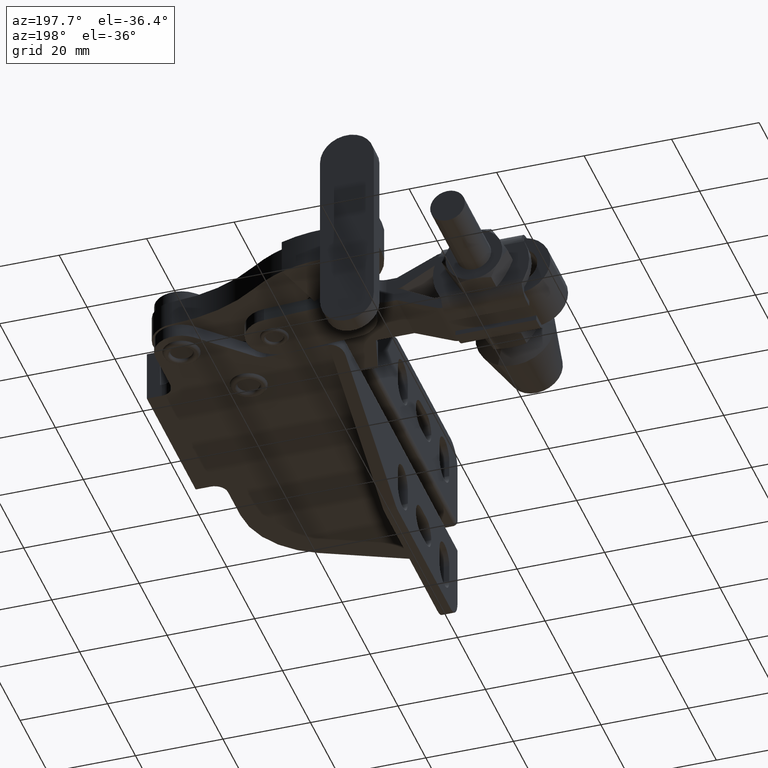
[diagram: clean part render]
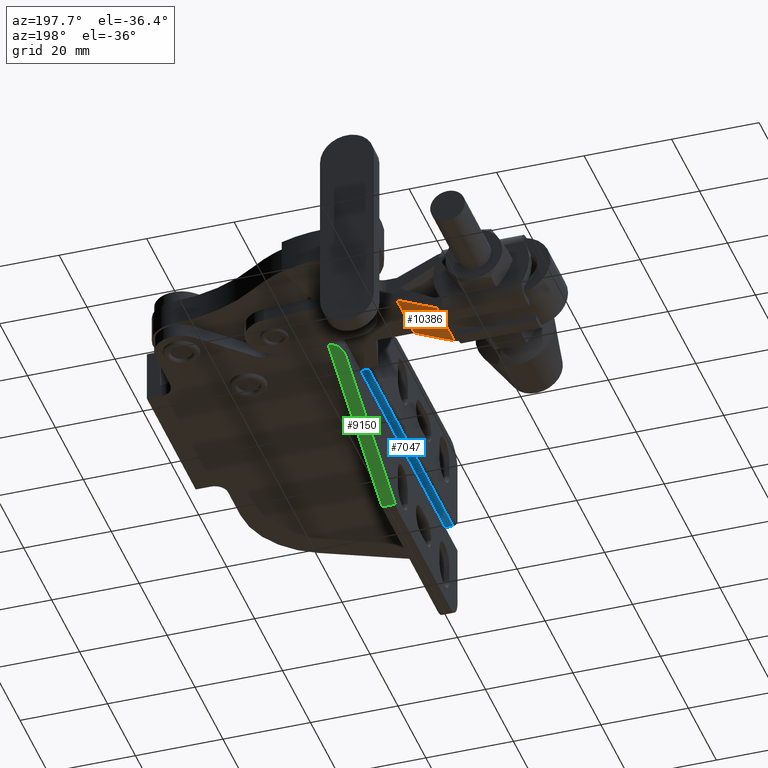
[diagram: same view with three faces highlighted in distinct colors, each labeled with its STEP entity id]
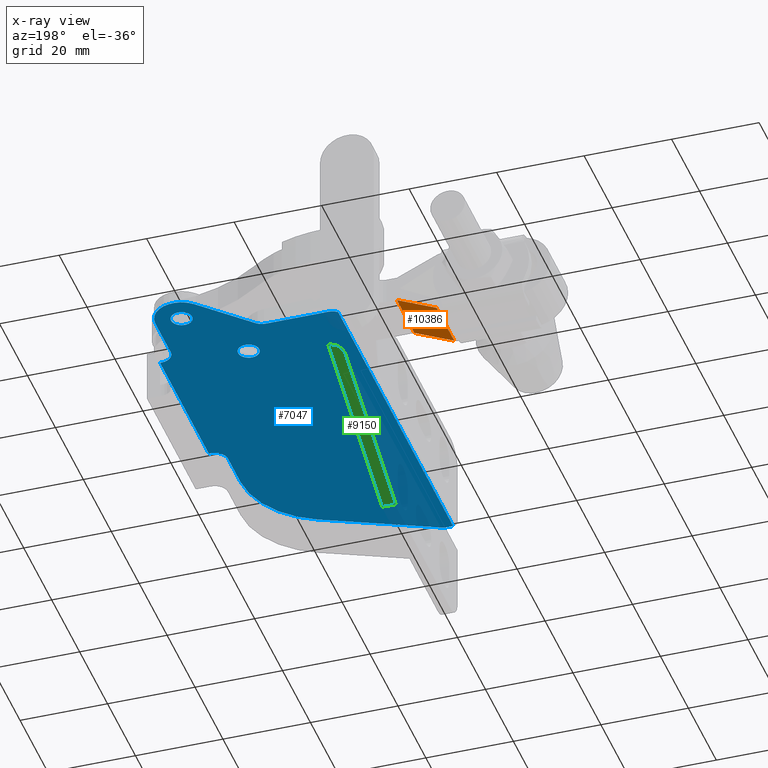
[diagram: x-ray of the same camera — body ghosted, the three highlighted faces saturated]
A machine part, auxiliary view with three faces highlighted in distinct colors.
The next image is the same camera in x-ray (body ghosted, the three faces saturated) — at least one of them is partly hidden behind the body in this view.
Their STEP definitions:

[orange] entity #10386 — the highlighted planar face has unit normal (-0.4132, 0, 0.9106).
#39 = VERTEX_POINT ( 'NONE', #1169 ) ;
#372 = VECTOR ( 'NONE', #1466, 1000.000000000000000 ) ;
#1169 = CARTESIAN_POINT ( 'NONE',  ( -24.09337188628660800, 77.79999999999998300, -10.12588058686079700 ) ) ;
#1220 = EDGE_CURVE ( 'NONE', #3267, #39, #5060, .T. ) ;
#1466 = DIRECTION ( 'NONE',  ( -2.229119666630197100E-016, -1.000000000000000000, 8.306326247221963900E-017 ) ) ;
#1636 = VERTEX_POINT ( 'NONE', #11659 ) ;
#1881 = DIRECTION ( 'NONE',  ( -0.4131828443626722700, 1.677448014424042700E-016, 0.9106480863233458200 ) ) ;
#2253 = VECTOR ( 'NONE', #12306, 1000.000000000000000 ) ;
#2323 = ORIENTED_EDGE ( 'NONE', *, *, #10571, .F. ) ;
#2368 = ORIENTED_EDGE ( 'NONE', *, *, #14013, .T. ) ;
#2586 = VECTOR ( 'NONE', #15194, 1000.000000000000200 ) ;
#3041 = PLANE ( 'NONE',  #14221 ) ;
#3267 = VERTEX_POINT ( 'NONE', #12188 ) ;
#3378 = CARTESIAN_POINT ( 'NONE',  ( -15.00000000000006200, 90.49999999999998600, -5.999999999999991100 ) ) ;
#4454 = FACE_OUTER_BOUND ( 'NONE', #11036, .T. ) ;
#5060 = LINE ( 'NONE', #7571, #14120 ) ;
#5149 = DIRECTION ( 'NONE',  ( -0.9106480863233458200, -3.384156807523496800E-017, -0.4131828443626722200 ) ) ;
#6348 = CARTESIAN_POINT ( 'NONE',  ( -24.09337188628660800, 98.19999999999998900, -10.12588058686079700 ) ) ;
#6908 = LINE ( 'NONE', #6348, #2253 ) ;
#7380 = ORIENTED_EDGE ( 'NONE', *, *, #1220, .T. ) ;
#7571 = CARTESIAN_POINT ( 'NONE',  ( -15.00000000000005500, 77.79999999999998300, -5.999999999999987600 ) ) ;
#8611 = CARTESIAN_POINT ( 'NONE',  ( -15.00000000000005500, 98.19999999999998900, -5.999999999999991100 ) ) ;
#8739 = CARTESIAN_POINT ( 'NONE',  ( -15.00000000000006200, 90.49999999999998600, -5.999999999999991100 ) ) ;
#8912 = LINE ( 'NONE', #3378, #2586 ) ;
#9504 = LINE ( 'NONE', #8611, #372 ) ;
#10176 = DIRECTION ( 'NONE',  ( 0.9106480863233457100, -1.686740408099373900E-016, 0.4131828443626722200 ) ) ;
#10386 = ADVANCED_FACE ( 'NONE', ( #4454 ), #3041, .F. ) ;
#10571 = EDGE_CURVE ( 'NONE', #12011, #1636, #8912, .T. ) ;
#11036 = EDGE_LOOP ( 'NONE', ( #2368, #7380, #12735, #2323 ) ) ;
#11659 = CARTESIAN_POINT ( 'NONE',  ( -24.09337188628660800, 90.49999999999998600, -10.12588058686079500 ) ) ;
#12011 = VERTEX_POINT ( 'NONE', #8739 ) ;
#12188 = CARTESIAN_POINT ( 'NONE',  ( -15.00000000000006200, 77.79999999999998300, -5.999999999999989300 ) ) ;
#12306 = DIRECTION ( 'NONE',  ( -2.229119666630197100E-016, -1.000000000000000000, 8.306326247221963900E-017 ) ) ;
#12735 = ORIENTED_EDGE ( 'NONE', *, *, #14715, .F. ) ;
#13668 = CARTESIAN_POINT ( 'NONE',  ( -15.00000000000005500, 98.19999999999998900, -5.999999999999991100 ) ) ;
#14013 = EDGE_CURVE ( 'NONE', #12011, #3267, #9504, .T. ) ;
#14120 = VECTOR ( 'NONE', #5149, 1000.000000000000200 ) ;
#14221 = AXIS2_PLACEMENT_3D ( 'NONE', #13668, #1881, #10176 ) ;
#14715 = EDGE_CURVE ( 'NONE', #1636, #39, #6908, .T. ) ;
#15194 = DIRECTION ( 'NONE',  ( -0.9106480863233458200, 2.528649378919298900E-016, -0.4131828443626722200 ) ) ;

[blue] entity #7047 — the highlighted planar face has unit normal (0, 0, 1).
#164 = DIRECTION ( 'NONE',  ( -1.000000000000000000, 0.0000000000000000000, 0.0000000000000000000 ) ) ;
#228 = LINE ( 'NONE', #268, #6572 ) ;
#244 = LINE ( 'NONE', #9099, #9370 ) ;
#252 = DIRECTION ( 'NONE',  ( 1.000000000000000000, 0.0000000000000000000, 0.0000000000000000000 ) ) ;
#268 = CARTESIAN_POINT ( 'NONE',  ( 40.20000000000011700, 29.49999999999997200, 3.816391647148975600E-014 ) ) ;
#500 = FACE_BOUND ( 'NONE', #7673, .T. ) ;
#699 = DIRECTION ( 'NONE',  ( 6.672013369141561300E-016, 1.000000000000000000, 0.0000000000000000000 ) ) ;
#917 = ORIENTED_EDGE ( 'NONE', *, *, #8310, .T. ) ;
#1204 = VECTOR ( 'NONE', #9339, 1000.000000000000000 ) ;
#1261 = EDGE_CURVE ( 'NONE', #10305, #10783, #4690, .T. ) ;
#1381 = EDGE_CURVE ( 'NONE', #10783, #3607, #2453, .T. ) ;
#1551 = CARTESIAN_POINT ( 'NONE',  ( 43.59999999999999400, -2.908997828945720800E-014, 3.816391647148975600E-014 ) ) ;
#1802 = AXIS2_PLACEMENT_3D ( 'NONE', #7484, #2782, #11088 ) ;
#1916 = CARTESIAN_POINT ( 'NONE',  ( 43.19999999999995300, 76.50000000000001400, 3.816391647148975600E-014 ) ) ;
#1988 = ORIENTED_EDGE ( 'NONE', *, *, #10984, .T. ) ;
#2192 = EDGE_CURVE ( 'NONE', #11984, #10305, #9290, .T. ) ;
#2195 = ORIENTED_EDGE ( 'NONE', *, *, #12660, .T. ) ;
#2238 = CARTESIAN_POINT ( 'NONE',  ( 29.94181345573087300, 94.72703765706036400, 3.816391647148975600E-014 ) ) ;
#2360 = EDGE_LOOP ( 'NONE', ( #2195, #5476, #5772, #14229, #3275, #13009, #2427, #15086, #7137, #14453, #13236, #1988, #12033, #7008, #7509, #13707 ) ) ;
#2388 = CARTESIAN_POINT ( 'NONE',  ( 40.20000000000011700, 29.49999999999997200, 3.816391647148975600E-014 ) ) ;
#2427 = ORIENTED_EDGE ( 'NONE', *, *, #2192, .T. ) ;
#2453 = LINE ( 'NONE', #1916, #14672 ) ;
#2537 = CARTESIAN_POINT ( 'NONE',  ( 40.20000000000001000, 79.50000000000001400, 3.816391647148975600E-014 ) ) ;
#2615 = LINE ( 'NONE', #12217, #11362 ) ;
#2727 = PLANE ( 'NONE',  #1802 ) ;
#2771 = CARTESIAN_POINT ( 'NONE',  ( 40.20000000000001000, 90.50000000000002800, 3.816391647148975600E-014 ) ) ;
#2782 = DIRECTION ( 'NONE',  ( -0.0000000000000000000, 0.0000000000000000000, 1.000000000000000000 ) ) ;
#2783 = CIRCLE ( 'NONE', #7863, 2.415000000000014200 ) ;
#2812 = AXIS2_PLACEMENT_3D ( 'NONE', #10239, #3146, #11454 ) ;
#3074 = CARTESIAN_POINT ( 'NONE',  ( 43.20000000000002400, 38.49999999999855000, 3.816391647148975600E-014 ) ) ;
#3146 = DIRECTION ( 'NONE',  ( -0.0000000000000000000, -0.0000000000000000000, 1.000000000000000000 ) ) ;
#3275 = ORIENTED_EDGE ( 'NONE', *, *, #7941, .T. ) ;
#3410 = CARTESIAN_POINT ( 'NONE',  ( 3.000000000000045700, 80.20000000000004500, 3.816391647148975600E-014 ) ) ;
#3451 = CARTESIAN_POINT ( 'NONE',  ( 3.000000000000045700, 83.20000000000004500, 3.816391647148975600E-014 ) ) ;
#3532 = VERTEX_POINT ( 'NONE', #9280 ) ;
#3579 = VECTOR ( 'NONE', #699, 1000.000000000000000 ) ;
#3607 = VERTEX_POINT ( 'NONE', #11773 ) ;
#3714 = DIRECTION ( 'NONE',  ( 0.0000000000000000000, -1.000000000000000000, 0.0000000000000000000 ) ) ;
#3727 = AXIS2_PLACEMENT_3D ( 'NONE', #3074, #11374, #4244 ) ;
#3964 = VERTEX_POINT ( 'NONE', #7816 ) ;
#3995 = DIRECTION ( 'NONE',  ( -0.0000000000000000000, 0.0000000000000000000, 1.000000000000000000 ) ) ;
#4003 = LINE ( 'NONE', #2238, #1204 ) ;
#4099 = VERTEX_POINT ( 'NONE', #10449 ) ;
#4244 = DIRECTION ( 'NONE',  ( 1.000000000000000000, 0.0000000000000000000, 0.0000000000000000000 ) ) ;
#4265 = CARTESIAN_POINT ( 'NONE',  ( 40.20000000000007400, 38.49999999999855000, 3.816391647148975600E-014 ) ) ;
#4587 = LINE ( 'NONE', #13636, #14004 ) ;
#4616 = DIRECTION ( 'NONE',  ( 1.000000000000000000, -4.625929269271486100E-015, 0.0000000000000000000 ) ) ;
#4690 = CIRCLE ( 'NONE', #11580, 2.999999999999975100 ) ;
#4826 = CARTESIAN_POINT ( 'NONE',  ( 20.20000000000004500, 29.49999999999997200, 3.816391647148975600E-014 ) ) ;
#4945 = ORIENTED_EDGE ( 'NONE', *, *, #6131, .T. ) ;
#5106 = CIRCLE ( 'NONE', #14977, 3.000000000000016400 ) ;
#5140 = VERTEX_POINT ( 'NONE', #7369 ) ;
#5252 = CARTESIAN_POINT ( 'NONE',  ( 40.19999999999998200, 79.50000000000001400, 3.816391647148975600E-014 ) ) ;
#5290 = CARTESIAN_POINT ( 'NONE',  ( 19.37909327213444400, 84.08648117146978500, 3.816391647148975600E-014 ) ) ;
#5370 = DIRECTION ( 'NONE',  ( -0.9142238515396996500, -0.4052095128151820800, 0.0000000000000000000 ) ) ;
#5446 = EDGE_CURVE ( 'NONE', #3532, #11984, #9855, .T. ) ;
#5476 = ORIENTED_EDGE ( 'NONE', *, *, #5956, .T. ) ;
#5484 = CARTESIAN_POINT ( 'NONE',  ( 1.000000000000045300, 83.20000000000004500, 3.816391647148975600E-014 ) ) ;
#5517 = CARTESIAN_POINT ( 'NONE',  ( 23.89999999999991300, 74.69999999999998900, 0.0000000000000000000 ) ) ;
#5578 = VECTOR ( 'NONE', #14670, 1000.000000000000000 ) ;
#5772 = ORIENTED_EDGE ( 'NONE', *, *, #9734, .T. ) ;
#5956 = EDGE_CURVE ( 'NONE', #12995, #14444, #10955, .T. ) ;
#6013 = DIRECTION ( 'NONE',  ( 1.000000000000000000, 0.0000000000000000000, 0.0000000000000000000 ) ) ;
#6131 = EDGE_CURVE ( 'NONE', #12878, #5140, #2783, .T. ) ;
#6181 = CARTESIAN_POINT ( 'NONE',  ( 43.19999999999995300, 76.50000000000001400, 3.816391647148975600E-014 ) ) ;
#6572 = VECTOR ( 'NONE', #8607, 1000.000000000000000 ) ;
#6632 = CARTESIAN_POINT ( 'NONE',  ( 31.79999999999993300, 90.50000000000002800, 0.0000000000000000000 ) ) ;
#6706 = DIRECTION ( 'NONE',  ( -1.000000000000000000, 0.0000000000000000000, 0.0000000000000000000 ) ) ;
#6742 = CARTESIAN_POINT ( 'NONE',  ( 34.19999999999994600, 90.50000000000002800, 0.0000000000000000000 ) ) ;
#6865 = FACE_BOUND ( 'NONE', #9909, .T. ) ;
#6971 = LINE ( 'NONE', #1551, #12895 ) ;
#7008 = ORIENTED_EDGE ( 'NONE', *, *, #12381, .T. ) ;
#7047 = ADVANCED_FACE ( 'NONE', ( #9990, #500, #6865 ), #2727, .F. ) ;
#7115 = CARTESIAN_POINT ( 'NONE',  ( 34.19999999999994600, 90.50000000000002800, 3.816391647148975600E-014 ) ) ;
#7137 = ORIENTED_EDGE ( 'NONE', *, *, #1381, .T. ) ;
#7284 = DIRECTION ( 'NONE',  ( -0.0000000000000000000, -0.0000000000000000000, 1.000000000000000000 ) ) ;
#7369 = CARTESIAN_POINT ( 'NONE',  ( 26.31499999999993000, 74.69999999999998900, 0.0000000000000000000 ) ) ;
#7484 = CARTESIAN_POINT ( 'NONE',  ( 43.60000000000005100, 88.10000000000003700, 3.816391647148975600E-014 ) ) ;
#7509 = ORIENTED_EDGE ( 'NONE', *, *, #11518, .T. ) ;
#7673 = EDGE_LOOP ( 'NONE', ( #9979, #4945 ) ) ;
#7816 = CARTESIAN_POINT ( 'NONE',  ( 43.20000000000002400, 41.49999999999849400, 3.816391647148975600E-014 ) ) ;
#7839 = CIRCLE ( 'NONE', #2812, 2.400000000000013200 ) ;
#7863 = AXIS2_PLACEMENT_3D ( 'NONE', #14372, #7284, #164 ) ;
#7873 = LINE ( 'NONE', #5484, #3579 ) ;
#7941 = EDGE_CURVE ( 'NONE', #14872, #3532, #4003, .T. ) ;
#7942 = DIRECTION ( 'NONE',  ( -1.000000000000000000, 0.0000000000000000000, 0.0000000000000000000 ) ) ;
#8125 = CARTESIAN_POINT ( 'NONE',  ( 43.60000000000002300, 41.49999999999849400, 3.816391647148975600E-014 ) ) ;
#8310 = EDGE_CURVE ( 'NONE', #14245, #12262, #15119, .T. ) ;
#8317 = DIRECTION ( 'NONE',  ( 1.000000000000000000, 0.0000000000000000000, 0.0000000000000000000 ) ) ;
#8340 = AXIS2_PLACEMENT_3D ( 'NONE', #5517, #13774, #6706 ) ;
#8470 = AXIS2_PLACEMENT_3D ( 'NONE', #6742, #15016, #7942 ) ;
#8483 = DIRECTION ( 'NONE',  ( 1.000000000000000000, -0.0000000000000000000, 0.0000000000000000000 ) ) ;
#8607 = DIRECTION ( 'NONE',  ( 4.625929269272216600E-015, -1.000000000000000000, 0.0000000000000000000 ) ) ;
#8734 = LINE ( 'NONE', #12304, #5578 ) ;
#8873 = VERTEX_POINT ( 'NONE', #4265 ) ;
#8903 = EDGE_CURVE ( 'NONE', #12262, #14245, #7839, .T. ) ;
#8998 = VERTEX_POINT ( 'NONE', #8125 ) ;
#9099 = CARTESIAN_POINT ( 'NONE',  ( 43.59999999999999400, -2.908997828945720800E-014, 3.816391647148975600E-014 ) ) ;
#9174 = CIRCLE ( 'NONE', #11646, 20.00000000000001800 ) ;
#9251 = CIRCLE ( 'NONE', #3727, 2.999999999999947200 ) ;
#9280 = CARTESIAN_POINT ( 'NONE',  ( 29.94181345573086300, 94.72703765706037900, 3.816391647148975600E-014 ) ) ;
#9290 = LINE ( 'NONE', #2537, #15204 ) ;
#9295 = CARTESIAN_POINT ( 'NONE',  ( 36.59999999999995900, 90.50000000000002800, 0.0000000000000000000 ) ) ;
#9339 = DIRECTION ( 'NONE',  ( 0.7045062761767251200, 0.7096977573781700900, 0.0000000000000000000 ) ) ;
#9370 = VECTOR ( 'NONE', #15084, 1000.000000000000000 ) ;
#9734 = EDGE_CURVE ( 'NONE', #14444, #4099, #2615, .T. ) ;
#9855 = CIRCLE ( 'NONE', #12213, 6.000000000000047100 ) ;
#9909 = EDGE_LOOP ( 'NONE', ( #11919, #917 ) ) ;
#9979 = ORIENTED_EDGE ( 'NONE', *, *, #12161, .T. ) ;
#9990 = FACE_OUTER_BOUND ( 'NONE', #2360, .T. ) ;
#10239 = CARTESIAN_POINT ( 'NONE',  ( 34.19999999999994600, 90.50000000000002800, 0.0000000000000000000 ) ) ;
#10269 = EDGE_CURVE ( 'NONE', #8998, #3964, #8734, .T. ) ;
#10305 = VERTEX_POINT ( 'NONE', #5252 ) ;
#10316 = CARTESIAN_POINT ( 'NONE',  ( 2.999999999999994700, -2.001604010742468900E-015, 3.816391647148975600E-014 ) ) ;
#10449 = CARTESIAN_POINT ( 'NONE',  ( 17.24999999999998200, 83.20000000000003100, 3.816391647148975600E-014 ) ) ;
#10783 = VERTEX_POINT ( 'NONE', #6181 ) ;
#10862 = CARTESIAN_POINT ( 'NONE',  ( 0.9999999999999931200, -6.672013369141542500E-016, 3.816391647148975600E-014 ) ) ;
#10955 = CIRCLE ( 'NONE', #11348, 2.999999999999999600 ) ;
#10984 = EDGE_CURVE ( 'NONE', #3964, #8873, #9251, .T. ) ;
#11084 = DIRECTION ( 'NONE',  ( -1.000000000000000000, 6.672013369141562300E-016, -0.0000000000000000000 ) ) ;
#11088 = DIRECTION ( 'NONE',  ( 1.000000000000000000, 0.0000000000000000000, 0.0000000000000000000 ) ) ;
#11134 = CARTESIAN_POINT ( 'NONE',  ( 17.24999999999998200, 86.20000000000006000, 3.816391647148975600E-014 ) ) ;
#11236 = CIRCLE ( 'NONE', #8340, 2.415000000000014200 ) ;
#11348 = AXIS2_PLACEMENT_3D ( 'NONE', #3410, #11724, #4616 ) ;
#11362 = VECTOR ( 'NONE', #13379, 1000.000000000000000 ) ;
#11374 = DIRECTION ( 'NONE',  ( -0.0000000000000000000, 0.0000000000000000000, 1.000000000000000000 ) ) ;
#11454 = DIRECTION ( 'NONE',  ( -1.000000000000000000, 0.0000000000000000000, 0.0000000000000000000 ) ) ;
#11518 = EDGE_CURVE ( 'NONE', #11641, #13833, #4587, .T. ) ;
#11580 = AXIS2_PLACEMENT_3D ( 'NONE', #12396, #14174, #252 ) ;
#11641 = VERTEX_POINT ( 'NONE', #13947 ) ;
#11646 = AXIS2_PLACEMENT_3D ( 'NONE', #4826, #13091, #6013 ) ;
#11724 = DIRECTION ( 'NONE',  ( 0.0000000000000000000, -0.0000000000000000000, -1.000000000000000000 ) ) ;
#11773 = CARTESIAN_POINT ( 'NONE',  ( 43.60000000000004400, 76.50000000000001400, 3.816391647148975600E-014 ) ) ;
#11876 = VERTEX_POINT ( 'NONE', #10862 ) ;
#11919 = ORIENTED_EDGE ( 'NONE', *, *, #8903, .T. ) ;
#11984 = VERTEX_POINT ( 'NONE', #2771 ) ;
#11997 = EDGE_CURVE ( 'NONE', #4099, #14872, #5106, .T. ) ;
#12033 = ORIENTED_EDGE ( 'NONE', *, *, #12469, .T. ) ;
#12161 = EDGE_CURVE ( 'NONE', #5140, #12878, #11236, .T. ) ;
#12208 = EDGE_CURVE ( 'NONE', #8998, #3607, #244, .T. ) ;
#12213 = AXIS2_PLACEMENT_3D ( 'NONE', #7115, #15391, #8317 ) ;
#12217 = CARTESIAN_POINT ( 'NONE',  ( 4.766151381121716100E-014, 83.20000000000004500, 3.816391647148975600E-014 ) ) ;
#12262 = VERTEX_POINT ( 'NONE', #9295 ) ;
#12300 = DIRECTION ( 'NONE',  ( 1.000000000000000000, 0.0000000000000000000, 0.0000000000000000000 ) ) ;
#12304 = CARTESIAN_POINT ( 'NONE',  ( 43.20000000000002400, 41.49999999999849400, 3.816391647148975600E-014 ) ) ;
#12381 = EDGE_CURVE ( 'NONE', #13863, #11641, #9174, .T. ) ;
#12396 = CARTESIAN_POINT ( 'NONE',  ( 43.19999999999995300, 79.50000000000001400, 3.816391647148975600E-014 ) ) ;
#12469 = EDGE_CURVE ( 'NONE', #8873, #13863, #228, .T. ) ;
#12660 = EDGE_CURVE ( 'NONE', #11876, #12995, #7873, .T. ) ;
#12878 = VERTEX_POINT ( 'NONE', #14254 ) ;
#12895 = VECTOR ( 'NONE', #11084, 1000.000000000000000 ) ;
#12995 = VERTEX_POINT ( 'NONE', #13313 ) ;
#13009 = ORIENTED_EDGE ( 'NONE', *, *, #5446, .T. ) ;
#13040 = EDGE_CURVE ( 'NONE', #13833, #11876, #6971, .T. ) ;
#13091 = DIRECTION ( 'NONE',  ( 0.0000000000000000000, -0.0000000000000000000, -1.000000000000000000 ) ) ;
#13236 = ORIENTED_EDGE ( 'NONE', *, *, #10269, .T. ) ;
#13313 = CARTESIAN_POINT ( 'NONE',  ( 1.000000000000044900, 82.43606797749983200, 3.816391647148975600E-014 ) ) ;
#13379 = DIRECTION ( 'NONE',  ( 1.000000000000000000, -0.0000000000000000000, 0.0000000000000000000 ) ) ;
#13636 = CARTESIAN_POINT ( 'NONE',  ( 2.999999999999994700, 0.0000000000000000000, 3.816391647148975600E-014 ) ) ;
#13707 = ORIENTED_EDGE ( 'NONE', *, *, #13040, .T. ) ;
#13774 = DIRECTION ( 'NONE',  ( -0.0000000000000000000, -0.0000000000000000000, 1.000000000000000000 ) ) ;
#13833 = VERTEX_POINT ( 'NONE', #10316 ) ;
#13863 = VERTEX_POINT ( 'NONE', #2388 ) ;
#13947 = CARTESIAN_POINT ( 'NONE',  ( 28.30419025630372000, 11.21552296920597400, 3.816391647148975600E-014 ) ) ;
#14004 = VECTOR ( 'NONE', #5370, 1000.000000000000100 ) ;
#14174 = DIRECTION ( 'NONE',  ( -0.0000000000000000000, 0.0000000000000000000, 1.000000000000000000 ) ) ;
#14229 = ORIENTED_EDGE ( 'NONE', *, *, #11997, .T. ) ;
#14245 = VERTEX_POINT ( 'NONE', #6632 ) ;
#14254 = CARTESIAN_POINT ( 'NONE',  ( 21.48499999999990000, 74.69999999999998900, 0.0000000000000000000 ) ) ;
#14372 = CARTESIAN_POINT ( 'NONE',  ( 23.89999999999991300, 74.69999999999998900, 0.0000000000000000000 ) ) ;
#14444 = VERTEX_POINT ( 'NONE', #3451 ) ;
#14453 = ORIENTED_EDGE ( 'NONE', *, *, #12208, .F. ) ;
#14670 = DIRECTION ( 'NONE',  ( -1.000000000000000000, 0.0000000000000000000, 0.0000000000000000000 ) ) ;
#14672 = VECTOR ( 'NONE', #8483, 1000.000000000000000 ) ;
#14872 = VERTEX_POINT ( 'NONE', #5290 ) ;
#14977 = AXIS2_PLACEMENT_3D ( 'NONE', #11134, #3995, #12300 ) ;
#15016 = DIRECTION ( 'NONE',  ( -0.0000000000000000000, -0.0000000000000000000, 1.000000000000000000 ) ) ;
#15084 = DIRECTION ( 'NONE',  ( 6.672013369141561300E-016, 1.000000000000000000, 0.0000000000000000000 ) ) ;
#15086 = ORIENTED_EDGE ( 'NONE', *, *, #1261, .T. ) ;
#15119 = CIRCLE ( 'NONE', #8470, 2.400000000000013200 ) ;
#15204 = VECTOR ( 'NONE', #3714, 1000.000000000000000 ) ;
#15391 = DIRECTION ( 'NONE',  ( 0.0000000000000000000, -0.0000000000000000000, -1.000000000000000000 ) ) ;

[green] entity #9150 — the highlighted planar face has unit normal (-0, -0.3945, 0.9189).
#132 = DIRECTION ( 'NONE',  ( 0.0000000000000000000, -0.9189048110773274700, -0.3944793380887534600 ) ) ;
#516 = DIRECTION ( 'NONE',  ( 6.130945184476429700E-016, 0.9189048110773274700, 0.3944793380887534600 ) ) ;
#728 = CARTESIAN_POINT ( 'NONE',  ( 3.000000000000020000, 83.20000000000004500, -8.999999999999994700 ) ) ;
#1538 = ORIENTED_EDGE ( 'NONE', *, *, #12976, .T. ) ;
#1820 = ORIENTED_EDGE ( 'NONE', *, *, #14359, .T. ) ;
#1884 = LINE ( 'NONE', #5646, #14108 ) ;
#3212 = CARTESIAN_POINT ( 'NONE',  ( 4.565990980047471300E-014, 80.20000000000007400, -10.28787878787876600 ) ) ;
#3244 = VERTEX_POINT ( 'NONE', #6232 ) ;
#3252 = DIRECTION ( 'NONE',  ( -1.000000000000000000, 6.672013369141561300E-016, 6.433294173389038600E-034 ) ) ;
#3469 = EDGE_CURVE ( 'NONE', #14335, #12155, #8813, .T. ) ;
#3849 = DIRECTION ( 'NONE',  ( 6.130945184476429700E-016, 0.9189048110773274700, 0.3944793380887534600 ) ) ;
#4065 = CARTESIAN_POINT ( 'NONE',  ( 3.000000000000022200, 44.54452043568758800, -25.59452405538672400 ) ) ;
#4315 = LINE ( 'NONE', #10029, #13385 ) ;
#4401 = CARTESIAN_POINT ( 'NONE',  ( 3.000000000000020000, 83.20000000000004500, -8.999999999999994700 ) ) ;
#4642 = EDGE_CURVE ( 'NONE', #11467, #12155, #4315, .T. ) ;
#5646 = CARTESIAN_POINT ( 'NONE',  ( 3.000000000000022200, 44.54452043568757300, -25.59452405538673500 ) ) ;
#6093 = CARTESIAN_POINT ( 'NONE',  ( 3.000000000000004000, 17.29694802817216400, -37.29171423033027100 ) ) ;
#6232 = CARTESIAN_POINT ( 'NONE',  ( 2.187052616685004400E-014, 44.54452043568758800, -25.59452405538672800 ) ) ;
#6791 = CARTESIAN_POINT ( 'NONE',  ( 4.565990980047471300E-014, 80.20000000000007400, -10.28787878787876600 ) ) ;
#7264 = DIRECTION ( 'NONE',  ( -2.631971417578277700E-016, -0.3944793380887535200, 0.9189048110773275800 ) ) ;
#7709 = LINE ( 'NONE', #8587, #10497 ) ;
#8113 = EDGE_LOOP ( 'NONE', ( #11376, #1820, #1538, #14917 ) ) ;
#8587 = CARTESIAN_POINT ( 'NONE',  ( 3.690909428890477400E-015, 17.29694802817216700, -37.29171423033027100 ) ) ;
#8813 =( BOUNDED_CURVE ( )  B_SPLINE_CURVE ( 3, ( #3212, #10315, #11526, #4401 ),
 .UNSPECIFIED., .F., .T. ) 
 B_SPLINE_CURVE_WITH_KNOTS ( ( 4, 4 ),
 ( 4.712388980384688800, 6.283185307179586200 ),
 .UNSPECIFIED. ) 
 CURVE ( )  GEOMETRIC_REPRESENTATION_ITEM ( )  RATIONAL_B_SPLINE_CURVE ( ( 1.000000000000000000, 0.8047378541243648300, 0.8047378541243648300, 1.000000000000000000 ) ) 
 REPRESENTATION_ITEM ( '' )  );
#9150 = ADVANCED_FACE ( 'NONE', ( #9306 ), #14349, .F. ) ;
#9306 = FACE_OUTER_BOUND ( 'NONE', #8113, .T. ) ;
#10029 = CARTESIAN_POINT ( 'NONE',  ( 3.000000000000004000, 17.29694802817216400, -37.29171423033027100 ) ) ;
#10315 = CARTESIAN_POINT ( 'NONE',  ( 4.395797170341497100E-014, 81.95735931288076900, -9.533456860632012900 ) ) ;
#10497 = VECTOR ( 'NONE', #3849, 1000.000000000000000 ) ;
#11376 = ORIENTED_EDGE ( 'NONE', *, *, #4642, .F. ) ;
#11467 = VERTEX_POINT ( 'NONE', #4065 ) ;
#11526 = CARTESIAN_POINT ( 'NONE',  ( 1.242640687119331600, 83.20000000000004500, -8.999999999999994700 ) ) ;
#12155 = VERTEX_POINT ( 'NONE', #728 ) ;
#12976 = EDGE_CURVE ( 'NONE', #3244, #14335, #7709, .T. ) ;
#13385 = VECTOR ( 'NONE', #516, 1000.000000000000000 ) ;
#14108 = VECTOR ( 'NONE', #3252, 1000.000000000000000 ) ;
#14335 = VERTEX_POINT ( 'NONE', #6791 ) ;
#14349 = PLANE ( 'NONE',  #15215 ) ;
#14359 = EDGE_CURVE ( 'NONE', #11467, #3244, #1884, .T. ) ;
#14917 = ORIENTED_EDGE ( 'NONE', *, *, #3469, .T. ) ;
#15215 = AXIS2_PLACEMENT_3D ( 'NONE', #6093, #7264, #132 ) ;